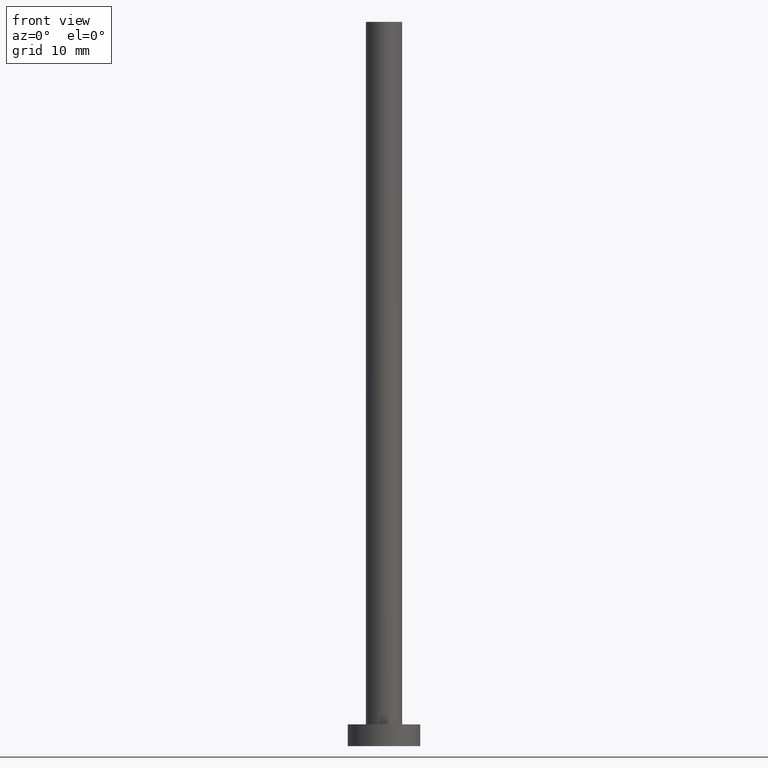
[diagram: clean part render]
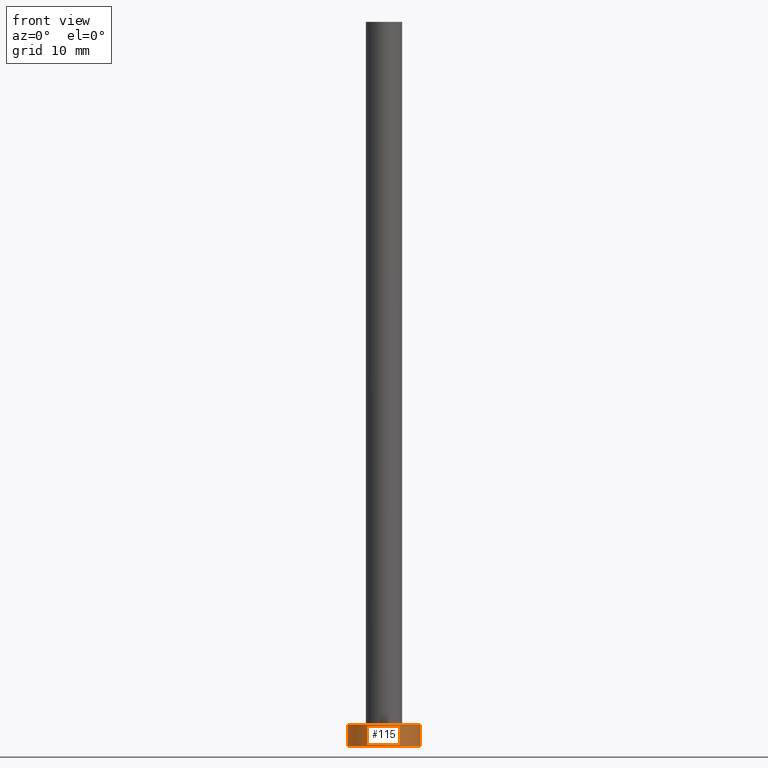
[diagram: same view with one face highlighted and labeled with its STEP entity id]
A machine part, front view. The second image highlights one B-rep face of the part: STEP entity #115.
In plain terms, the highlighted cylindrical surface (edge-blend (fillet) strip) has radius 5 mm, axis along (-0, -0, -1).
Its self-contained STEP definition (entity closure, byte-faithful):
#3 = CARTESIAN_POINT ( 'NONE',  ( -5.000000000000000000, 0.000000000000000000, 3.000000000000000000 ) ) ;
#8 = AXIS2_PLACEMENT_3D ( 'NONE', #33, #27, #218 ) ;
#18 = ORIENTED_EDGE ( 'NONE', *, *, #170, .T. ) ;
#19 = CARTESIAN_POINT ( 'NONE',  ( 5.000000000000000000, 6.123233995736766282E-16, 0.000000000000000000 ) ) ;
#24 = VECTOR ( 'NONE', #160, 1000.000000000000000 ) ;
#27 = DIRECTION ( 'NONE',  ( -0.000000000000000000, -0.000000000000000000, -1.000000000000000000 ) ) ;
#32 = DIRECTION ( 'NONE',  ( 0.000000000000000000, 0.000000000000000000, 1.000000000000000000 ) ) ;
#33 = CARTESIAN_POINT ( 'NONE',  ( 0.000000000000000000, 0.000000000000000000, 3.000000000000000000 ) ) ;
#41 = VECTOR ( 'NONE', #215, 1000.000000000000000 ) ;
#47 = LINE ( 'NONE', #106, #41 ) ;
#48 = CARTESIAN_POINT ( 'NONE',  ( 5.000000000000000000, 6.123233995736766282E-16, 3.000000000000000000 ) ) ;
#50 = DIRECTION ( 'NONE',  ( 1.000000000000000000, 0.000000000000000000, 0.000000000000000000 ) ) ;
#51 = AXIS2_PLACEMENT_3D ( 'NONE', #148, #203, #247 ) ;
#65 = VERTEX_POINT ( 'NONE', #19 ) ;
#86 = CARTESIAN_POINT ( 'NONE',  ( -5.000000000000000000, 0.000000000000000000, 0.000000000000000000 ) ) ;
#100 = EDGE_LOOP ( 'NONE', ( #186, #188, #18, #168 ) ) ;
#106 = CARTESIAN_POINT ( 'NONE',  ( 5.000000000000000000, 6.123233995736766282E-16, 3.000000000000000000 ) ) ;
#115 = ADVANCED_FACE ( 'NONE', ( #122 ), #193, .T. ) ;
#122 = FACE_OUTER_BOUND ( 'NONE', #100, .T. ) ;
#124 = CARTESIAN_POINT ( 'NONE',  ( 0.000000000000000000, 0.000000000000000000, 3.000000000000000000 ) ) ;
#134 = VERTEX_POINT ( 'NONE', #48 ) ;
#135 = CIRCLE ( 'NONE', #51, 5.000000000000000000 ) ;
#136 = VERTEX_POINT ( 'NONE', #86 ) ;
#139 = CARTESIAN_POINT ( 'NONE',  ( -5.000000000000000000, 0.000000000000000000, 3.000000000000000000 ) ) ;
#142 = CIRCLE ( 'NONE', #173, 5.000000000000000000 ) ;
#148 = CARTESIAN_POINT ( 'NONE',  ( 0.000000000000000000, 0.000000000000000000, 0.000000000000000000 ) ) ;
#160 = DIRECTION ( 'NONE',  ( -0.000000000000000000, -0.000000000000000000, -1.000000000000000000 ) ) ;
#168 = ORIENTED_EDGE ( 'NONE', *, *, #176, .T. ) ;
#170 = EDGE_CURVE ( 'NONE', #208, #136, #178, .T. ) ;
#173 = AXIS2_PLACEMENT_3D ( 'NONE', #124, #32, #50 ) ;
#176 = EDGE_CURVE ( 'NONE', #136, #65, #135, .T. ) ;
#178 = LINE ( 'NONE', #3, #24 ) ;
#186 = ORIENTED_EDGE ( 'NONE', *, *, #239, .F. ) ;
#188 = ORIENTED_EDGE ( 'NONE', *, *, #220, .F. ) ;
#193 = CYLINDRICAL_SURFACE ( 'NONE', #8, 5.000000000000000000 ) ;
#203 = DIRECTION ( 'NONE',  ( 0.000000000000000000, 0.000000000000000000, 1.000000000000000000 ) ) ;
#208 = VERTEX_POINT ( 'NONE', #139 ) ;
#215 = DIRECTION ( 'NONE',  ( -0.000000000000000000, -0.000000000000000000, -1.000000000000000000 ) ) ;
#218 = DIRECTION ( 'NONE',  ( -1.000000000000000000, 0.000000000000000000, 0.000000000000000000 ) ) ;
#220 = EDGE_CURVE ( 'NONE', #208, #134, #142, .T. ) ;
#239 = EDGE_CURVE ( 'NONE', #134, #65, #47, .T. ) ;
#247 = DIRECTION ( 'NONE',  ( 1.000000000000000000, 0.000000000000000000, 0.000000000000000000 ) ) ;